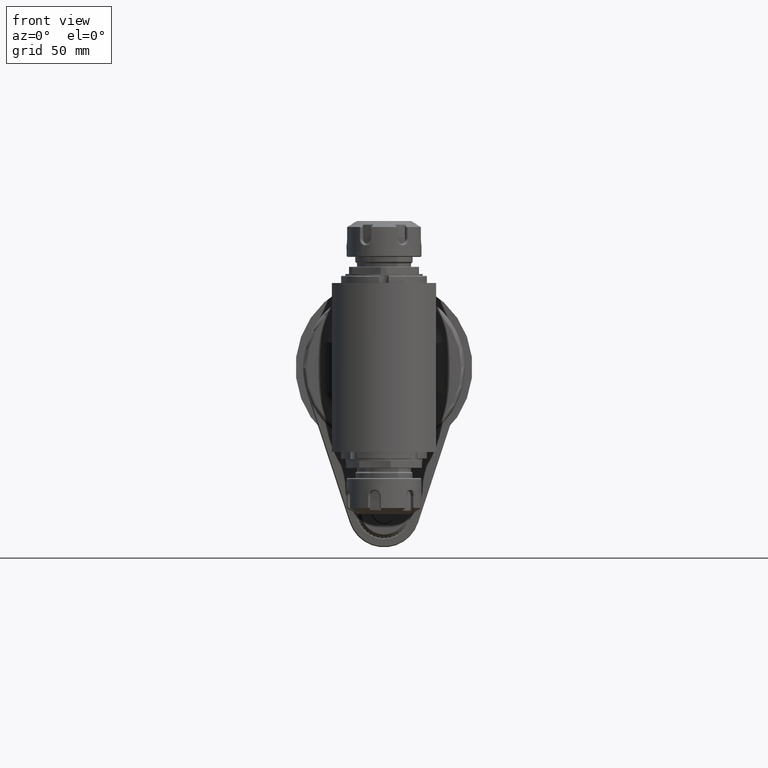
[diagram: clean part render]
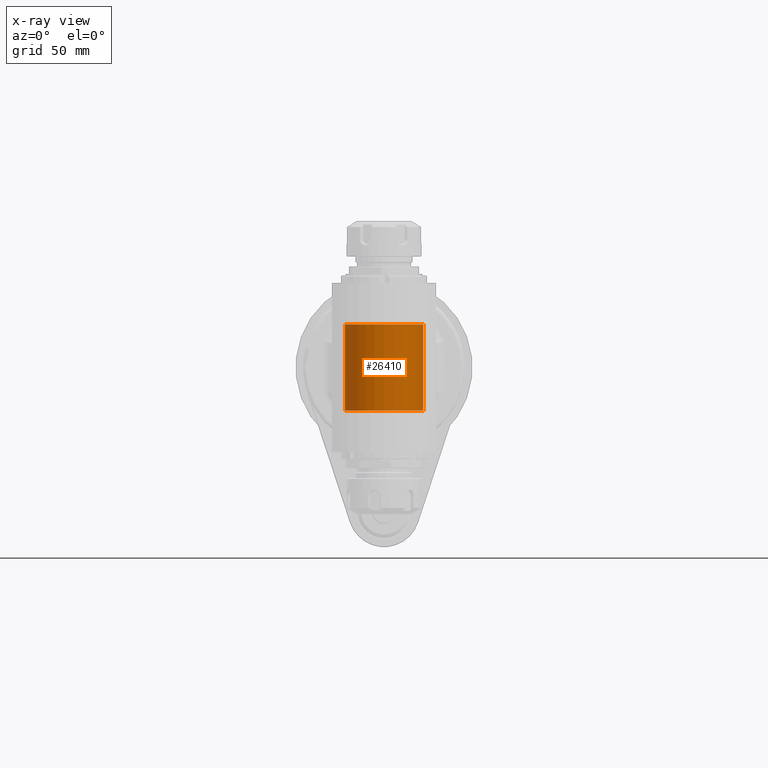
[diagram: x-ray — body ghosted, one internal face saturated and labeled with its STEP entity id]
A machine part, front view, then the same camera in x-ray: the body is ghosted and one INTERNAL B-rep face — a face not visible from any outside direction — is saturated and labeled: STEP entity #26410.
In plain terms, the highlighted cylindrical surface (bore or boss wall) has radius 22 mm, axis along (0, -0, 1).
Its self-contained STEP definition (entity closure, byte-faithful):
#575=FACE_BOUND('',#5731,.T.);
#1811=CIRCLE('',#28762,22.);
#1812=CIRCLE('',#28764,22.);
#2500=B_SPLINE_CURVE_WITH_KNOTS('',3,(#47188,#47189,#47190,#47191,#47192,
#47193,#47194,#47195,#47196,#47197,#47198,#47199,#47200,#47201,#47202,#47203,
#47204,#47205,#47206,#47207,#47208,#47209,#47210,#47211,#47212,#47213,#47214,
#47215),.UNSPECIFIED.,.F.,.F.,(4,2,2,2,2,2,2,2,2,2,2,2,2,4),(18.4280957581904,
18.857869010626,19.2876422630617,19.7174155154973,20.1471887679329,20.6388203034068,
21.1304518388807,21.6220833743546,21.8678991420915,22.1137149098285,22.3595306775654,
22.6053464453024,23.0969779807763,23.3397036890978),.UNSPECIFIED.);
#2501=B_SPLINE_CURVE_WITH_KNOTS('',3,(#47217,#47218,#47219,#47220,#47221,
#47222,#47223,#47224,#47225,#47226),.UNSPECIFIED.,.F.,.F.,(4,2,2,2,4),(0.369495346331702,
0.447892560772112,0.540689338723053,0.618934428753227,0.697179518783401),
 .UNSPECIFIED.);
#2502=B_SPLINE_CURVE_WITH_KNOTS('',3,(#47228,#47229,#47230,#47231,#47232,
#47233,#47234,#47235,#47236,#47237,#47238,#47239,#47240,#47241,#47242,#47243,
#47244,#47245),.UNSPECIFIED.,.F.,.F.,(4,2,2,2,2,2,2,2,4),(0.697179518783401,
0.775424608813575,0.85366969884375,0.94646647679469,1.03926325474563,1.13772719666031,
1.23619113857499,1.3152750880709,1.3515254250324),.UNSPECIFIED.);
#2503=B_SPLINE_CURVE_WITH_KNOTS('',3,(#47246,#47247,#47248,#47249,#47250,
#47251,#47252,#47253,#47254,#47255,#47256,#47257,#47258,#47259,#47260,#47261,
#47262,#47263,#47264,#47265,#47266,#47267,#47268,#47269,#47270,#47271,#47272,
#47273,#47274,#47275,#47276,#47277,#47278,#47279,#47280,#47281,#47282,#47283,
#47284,#47285,#47286,#47287,#47288,#47289,#47290,#47291,#47292,#47293,#47294),
 .UNSPECIFIED.,.F.,.F.,(4,2,2,2,2,2,2,2,2,2,2,2,2,2,3,2,2,2,2,2,2,2,2,4),
(8.95751187789359,9.33776444517176,9.76753769760738,10.197310950043,10.6270842024786,
11.0568574549142,11.4866307073499,11.9164039597855,12.3461772122211,12.7759504646567,
13.2675820001306,13.7592135356045,14.2508450710784,14.4966608388154,14.7424766065523,
14.9882923742893,15.2341081420262,15.7257396775001,16.217371212974,16.7090027484479,
17.1387760008835,17.5685492533192,17.9983225057548,18.4280957581904),
 .UNSPECIFIED.);
#2945=CYLINDRICAL_SURFACE('',#28763,22.);
#4075=FACE_OUTER_BOUND('',#5730,.T.);
#5730=EDGE_LOOP('',(#22100,#22101,#22102,#22103));
#5731=EDGE_LOOP('',(#22104,#22105,#22106,#22107));
#7748=LINE('',#47184,#9738);
#9738=VECTOR('',#34616,22.);
#12020=VERTEX_POINT('',#47180);
#12021=VERTEX_POINT('',#47183);
#12022=VERTEX_POINT('',#47186);
#12023=VERTEX_POINT('',#47187);
#12024=VERTEX_POINT('',#47216);
#12025=VERTEX_POINT('',#47227);
#15532=EDGE_CURVE('',#12020,#12020,#1811,.T.);
#15533=EDGE_CURVE('',#12020,#12021,#7748,.T.);
#15534=EDGE_CURVE('',#12021,#12021,#1812,.T.);
#15535=EDGE_CURVE('',#12022,#12023,#2500,.F.);
#15536=EDGE_CURVE('',#12022,#12024,#2501,.T.);
#15537=EDGE_CURVE('',#12024,#12025,#2502,.T.);
#15538=EDGE_CURVE('',#12023,#12025,#2503,.F.);
#22100=ORIENTED_EDGE('',*,*,#15532,.F.);
#22101=ORIENTED_EDGE('',*,*,#15533,.T.);
#22102=ORIENTED_EDGE('',*,*,#15534,.T.);
#22103=ORIENTED_EDGE('',*,*,#15533,.F.);
#22104=ORIENTED_EDGE('',*,*,#15535,.F.);
#22105=ORIENTED_EDGE('',*,*,#15536,.T.);
#22106=ORIENTED_EDGE('',*,*,#15537,.T.);
#22107=ORIENTED_EDGE('',*,*,#15538,.F.);
#26410=ADVANCED_FACE('',(#4075,#575),#2945,.F.);
#28762=AXIS2_PLACEMENT_3D('',#47181,#34612,#34613);
#28763=AXIS2_PLACEMENT_3D('',#47182,#34614,#34615);
#28764=AXIS2_PLACEMENT_3D('',#47185,#34617,#34618);
#34612=DIRECTION('center_axis',(0.,0.,1.));
#34613=DIRECTION('ref_axis',(0.,1.,0.));
#34614=DIRECTION('center_axis',(0.,0.,1.));
#34615=DIRECTION('ref_axis',(0.,1.,0.));
#34616=DIRECTION('',(0.,0.,1.));
#34617=DIRECTION('center_axis',(0.,0.,1.));
#34618=DIRECTION('ref_axis',(0.,1.,0.));
#47180=CARTESIAN_POINT('',(0.,-198.8,-24.));
#47181=CARTESIAN_POINT('Origin',(0.,-176.8,-24.));
#47182=CARTESIAN_POINT('Origin',(0.,-176.8,-52.1));
#47183=CARTESIAN_POINT('',(0.,-198.8,24.));
#47184=CARTESIAN_POINT('',(2.69422295812418E-15,-198.8,-52.1));
#47185=CARTESIAN_POINT('Origin',(0.,-176.8,24.));
#47186=CARTESIAN_POINT('',(-18.51808448192,-164.9222667516,9.903562344963));
#47187=CARTESIAN_POINT('',(9.75132970187154E-15,-154.8,-21.));
#47188=CARTESIAN_POINT('Ctrl Pts',(8.32667268468867E-15,-154.8,-21.));
#47189=CARTESIAN_POINT('Ctrl Pts',(-1.43257750811874,-154.8,-21.));
#47190=CARTESIAN_POINT('Ctrl Pts',(-2.88130471334021,-154.942218548739,
-20.8511534466419));
#47191=CARTESIAN_POINT('Ctrl Pts',(-5.6998168365524,-155.502661790368,-20.2628873781902));
#47192=CARTESIAN_POINT('Ctrl Pts',(-7.06970330485272,-155.920640315871,
-19.823719945534));
#47193=CARTESIAN_POINT('Ctrl Pts',(-9.63896366302139,-156.975300326901,
-18.7096480380301));
#47194=CARTESIAN_POINT('Ctrl Pts',(-10.8415973515438,-157.6129581876,-18.033686314346));
#47195=CARTESIAN_POINT('Ctrl Pts',(-13.0213573397773,-159.020037695216,
-16.5287122337865));
#47196=CARTESIAN_POINT('Ctrl Pts',(-13.9986865477404,-159.789250222618,
-15.6997982620946));
#47197=CARTESIAN_POINT('Ctrl Pts',(-15.8222207829354,-161.457372600008,
-13.8762640268996));
#47198=CARTESIAN_POINT('Ctrl Pts',(-16.6999358844457,-162.424148849774,
-12.8052262917104));
#47199=CARTESIAN_POINT('Ctrl Pts',(-18.2165250485513,-164.401969177033,
-10.5365978853863));
#47200=CARTESIAN_POINT('Ctrl Pts',(-18.8558268150495,-165.414047403387,
-9.34019501457614));
#47201=CARTESIAN_POINT('Ctrl Pts',(-19.8866044074878,-167.328723083398,
-6.87782036853914));
#47202=CARTESIAN_POINT('Ctrl Pts',(-20.2762759788724,-168.228546182962,
-5.628067733155));
#47203=CARTESIAN_POINT('Ctrl Pts',(-20.6899585184566,-169.311667890072,
-3.65732346627147));
#47204=CARTESIAN_POINT('Ctrl Pts',(-20.7989671498641,-169.626223700477,
-2.98536157326437));
#47205=CARTESIAN_POINT('Ctrl Pts',(-20.9536658854551,-170.091498582302,
-1.56630126771824));
#47206=CARTESIAN_POINT('Ctrl Pts',(-21.,-170.242561475698,-0.819385892456506));
#47207=CARTESIAN_POINT('Ctrl Pts',(-21.,-170.242561475698,0.819385892456488));
#47208=CARTESIAN_POINT('Ctrl Pts',(-20.9536658854551,-170.091498582302,
1.56630126771822));
#47209=CARTESIAN_POINT('Ctrl Pts',(-20.7989671498641,-169.626223700477,
2.98536157326436));
#47210=CARTESIAN_POINT('Ctrl Pts',(-20.6899585184566,-169.311667890072,
3.65732346627146));
#47211=CARTESIAN_POINT('Ctrl Pts',(-20.2762759788725,-168.228546182962,
5.628067733155));
#47212=CARTESIAN_POINT('Ctrl Pts',(-19.8866044074878,-167.328723083398,
6.87782036853914));
#47213=CARTESIAN_POINT('Ctrl Pts',(-19.1167605944588,-165.898733493959,
8.71686295203867));
#47214=CARTESIAN_POINT('Ctrl Pts',(-18.8323477190864,-165.412221615338,
9.31594013663489));
#47215=CARTESIAN_POINT('Ctrl Pts',(-18.5180844819221,-164.92226675159,9.90356234495427));
#47216=CARTESIAN_POINT('',(-19.6466282094409,-166.9,12.));
#47217=CARTESIAN_POINT('Ctrl Pts',(-18.5180844819262,-164.922266751596,
9.90356234496369));
#47218=CARTESIAN_POINT('Ctrl Pts',(-18.6620730624297,-165.146753414365,
9.91665467564543));
#47219=CARTESIAN_POINT('Ctrl Pts',(-18.8080968074024,-165.384044689117,
9.96811307339966));
#47220=CARTESIAN_POINT('Ctrl Pts',(-19.0988952664716,-165.876253786661,
10.1737238745347));
#47221=CARTESIAN_POINT('Ctrl Pts',(-19.2385414542677,-166.126207028473,
10.3461503291637));
#47222=CARTESIAN_POINT('Ctrl Pts',(-19.4373721948244,-166.493445841168,
10.7343012133126));
#47223=CARTESIAN_POINT('Ctrl Pts',(-19.5162966237199,-166.644841769695,
10.9607658364343));
#47224=CARTESIAN_POINT('Ctrl Pts',(-19.6207927880983,-166.848238218245,
11.4631858751253));
#47225=CARTESIAN_POINT('Ctrl Pts',(-19.6466282094409,-166.9,11.7391830332328));
#47226=CARTESIAN_POINT('Ctrl Pts',(-19.6466282094409,-166.9,12.));
#47227=CARTESIAN_POINT('',(-16.92491679811,-162.7448517839,12.4317010653));
#47228=CARTESIAN_POINT('Ctrl Pts',(-19.6466282094409,-166.9,12.));
#47229=CARTESIAN_POINT('Ctrl Pts',(-19.6466282094409,-166.9,12.2608169667672));
#47230=CARTESIAN_POINT('Ctrl Pts',(-19.6207927880983,-166.848238218245,
12.5368141248747));
#47231=CARTESIAN_POINT('Ctrl Pts',(-19.5162966237199,-166.644841769695,
13.0392341635657));
#47232=CARTESIAN_POINT('Ctrl Pts',(-19.4373721948244,-166.493445841168,
13.2656987866874));
#47233=CARTESIAN_POINT('Ctrl Pts',(-19.2385414542677,-166.126207028473,
13.6538496708363));
#47234=CARTESIAN_POINT('Ctrl Pts',(-19.0988952664716,-165.876253786661,
13.8262761254653));
#47235=CARTESIAN_POINT('Ctrl Pts',(-18.7836370070225,-165.342643726025,
14.0491813757106));
#47236=CARTESIAN_POINT('Ctrl Pts',(-18.607810329042,-165.059255763579,14.1));
#47237=CARTESIAN_POINT('Ctrl Pts',(-18.26006356565,-164.524911306084,14.1));
#47238=CARTESIAN_POINT('Ctrl Pts',(-18.0609212521754,-164.233674452456,
14.0432820426752));
#47239=CARTESIAN_POINT('Ctrl Pts',(-17.6749638774587,-163.696372022039,
13.8104505924012));
#47240=CARTESIAN_POINT('Ctrl Pts',(-17.4883243829603,-163.45007146444,13.6345884907052));
#47241=CARTESIAN_POINT('Ctrl Pts',(-17.2116834519187,-163.096058918375,
13.2493570181616));
#47242=CARTESIAN_POINT('Ctrl Pts',(-17.0944788097148,-162.950984666217,
13.0303581237285));
#47243=CARTESIAN_POINT('Ctrl Pts',(-16.9759555554682,-162.806416275051,
12.6711449962292));
#47244=CARTESIAN_POINT('Ctrl Pts',(-16.9460027232393,-162.77024301583,12.5525781009157));
#47245=CARTESIAN_POINT('Ctrl Pts',(-16.9249167981099,-162.744851783882,
12.431701065305));
#47246=CARTESIAN_POINT('Ctrl Pts',(-16.9249167981161,-162.744851783889,
12.4317010652947));
#47247=CARTESIAN_POINT('Ctrl Pts',(-16.2977937241821,-161.989683237438,
13.2854865442701));
#47248=CARTESIAN_POINT('Ctrl Pts',(-15.6017928404603,-161.255730768257,
14.0966919693747));
#47249=CARTESIAN_POINT('Ctrl Pts',(-13.9986865477404,-159.789250222618,
15.6997982620946));
#47250=CARTESIAN_POINT('Ctrl Pts',(-13.0213573397773,-159.020037695216,
16.5287122337865));
#47251=CARTESIAN_POINT('Ctrl Pts',(-10.8415973515439,-157.6129581876,18.033686314346));
#47252=CARTESIAN_POINT('Ctrl Pts',(-9.6389636630214,-156.975300326901,18.7096480380301));
#47253=CARTESIAN_POINT('Ctrl Pts',(-7.06970330485273,-155.920640315871,
19.823719945534));
#47254=CARTESIAN_POINT('Ctrl Pts',(-5.69981683655242,-155.502661790368,
20.2628873781902));
#47255=CARTESIAN_POINT('Ctrl Pts',(-2.88130471334023,-154.942218548739,
20.8511534466419));
#47256=CARTESIAN_POINT('Ctrl Pts',(-1.43257750811874,-154.8,21.));
#47257=CARTESIAN_POINT('Ctrl Pts',(1.43257750811873,-154.8,21.));
#47258=CARTESIAN_POINT('Ctrl Pts',(2.88130471334021,-154.942218548739,20.8511534466419));
#47259=CARTESIAN_POINT('Ctrl Pts',(5.69981683655239,-155.502661790368,20.2628873781902));
#47260=CARTESIAN_POINT('Ctrl Pts',(7.06970330485271,-155.920640315871,19.823719945534));
#47261=CARTESIAN_POINT('Ctrl Pts',(9.63896366302138,-156.975300326901,18.7096480380301));
#47262=CARTESIAN_POINT('Ctrl Pts',(10.8415973515438,-157.6129581876,18.033686314346));
#47263=CARTESIAN_POINT('Ctrl Pts',(13.0213573397773,-159.020037695216,16.5287122337865));
#47264=CARTESIAN_POINT('Ctrl Pts',(13.9986865477404,-159.789250222618,15.6997982620946));
#47265=CARTESIAN_POINT('Ctrl Pts',(15.8222207829354,-161.457372600008,13.8762640268996));
#47266=CARTESIAN_POINT('Ctrl Pts',(16.6999358844457,-162.424148849774,12.8052262917104));
#47267=CARTESIAN_POINT('Ctrl Pts',(18.2165250485513,-164.401969177033,10.5365978853863));
#47268=CARTESIAN_POINT('Ctrl Pts',(18.8558268150495,-165.414047403387,9.34019501457613));
#47269=CARTESIAN_POINT('Ctrl Pts',(19.8866044074878,-167.328723083398,6.87782036853914));
#47270=CARTESIAN_POINT('Ctrl Pts',(20.2762759788725,-168.228546182962,5.628067733155));
#47271=CARTESIAN_POINT('Ctrl Pts',(20.6899585184566,-169.311667890072,3.65732346627146));
#47272=CARTESIAN_POINT('Ctrl Pts',(20.7989671498641,-169.626223700477,2.98536157326437));
#47273=CARTESIAN_POINT('Ctrl Pts',(20.9536658854551,-170.091498582302,1.56630126771823));
#47274=CARTESIAN_POINT('Ctrl Pts',(21.,-170.242561475698,0.81938589245649));
#47275=CARTESIAN_POINT('Ctrl Pts',(21.,-170.242561475698,-8.88178419700125E-15));
#47276=CARTESIAN_POINT('Ctrl Pts',(21.,-170.242561475698,-0.819385892456506));
#47277=CARTESIAN_POINT('Ctrl Pts',(20.9536658854551,-170.091498582302,-1.56630126771824));
#47278=CARTESIAN_POINT('Ctrl Pts',(20.7989671498641,-169.626223700477,-2.98536157326439));
#47279=CARTESIAN_POINT('Ctrl Pts',(20.6899585184566,-169.311667890072,-3.65732346627147));
#47280=CARTESIAN_POINT('Ctrl Pts',(20.2762759788725,-168.228546182962,-5.628067733155));
#47281=CARTESIAN_POINT('Ctrl Pts',(19.8866044074878,-167.328723083398,-6.87782036853914));
#47282=CARTESIAN_POINT('Ctrl Pts',(18.8558268150495,-165.414047403387,-9.34019501457614));
#47283=CARTESIAN_POINT('Ctrl Pts',(18.2165250485513,-164.401969177033,-10.5365978853863));
#47284=CARTESIAN_POINT('Ctrl Pts',(16.6999358844457,-162.424148849774,-12.8052262917104));
#47285=CARTESIAN_POINT('Ctrl Pts',(15.8222207829354,-161.457372600008,-13.8762640268996));
#47286=CARTESIAN_POINT('Ctrl Pts',(13.9986865477404,-159.789250222618,-15.6997982620946));
#47287=CARTESIAN_POINT('Ctrl Pts',(13.0213573397773,-159.020037695216,-16.5287122337865));
#47288=CARTESIAN_POINT('Ctrl Pts',(10.8415973515438,-157.6129581876,-18.033686314346));
#47289=CARTESIAN_POINT('Ctrl Pts',(9.63896366302139,-156.975300326901,-18.7096480380301));
#47290=CARTESIAN_POINT('Ctrl Pts',(7.06970330485272,-155.920640315871,-19.823719945534));
#47291=CARTESIAN_POINT('Ctrl Pts',(5.6998168365524,-155.502661790368,-20.2628873781902));
#47292=CARTESIAN_POINT('Ctrl Pts',(2.88130471334022,-154.942218548739,-20.8511534466419));
#47293=CARTESIAN_POINT('Ctrl Pts',(1.43257750811874,-154.8,-21.));
#47294=CARTESIAN_POINT('Ctrl Pts',(8.32667268468867E-15,-154.8,-21.));